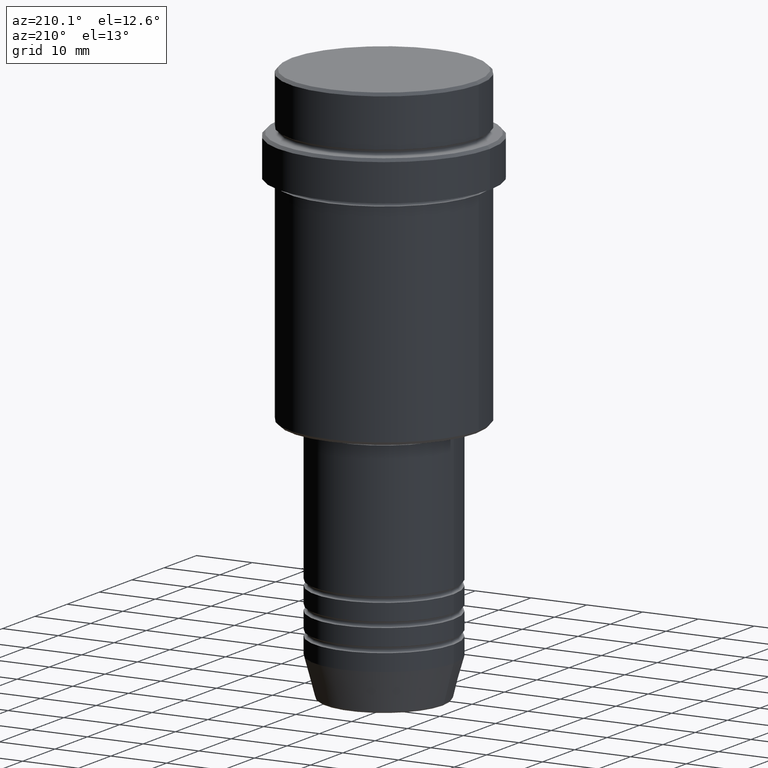
[diagram: clean part render]
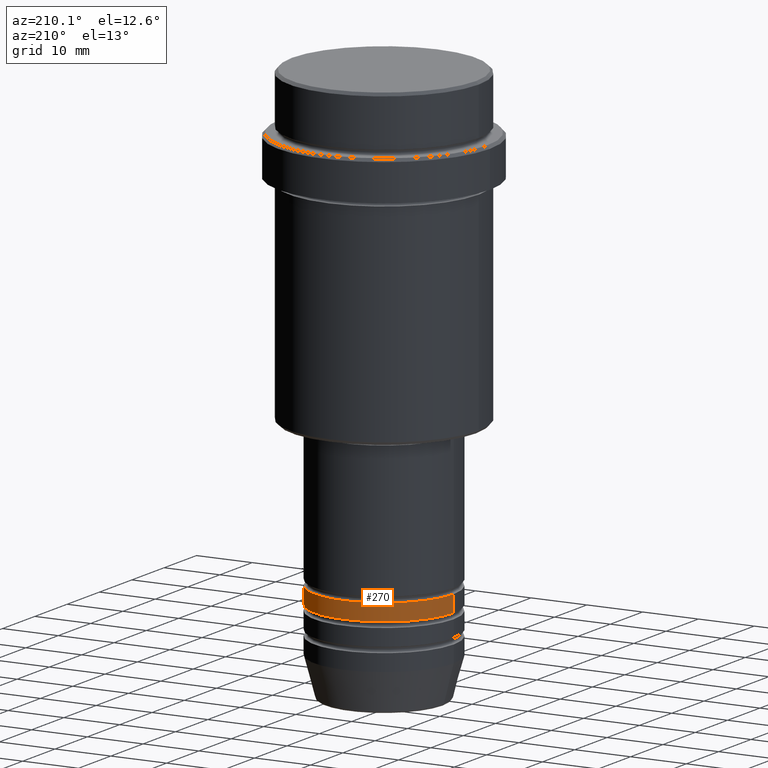
[diagram: same view with one face highlighted and labeled with its STEP entity id]
A machine part, auxiliary view. The second image highlights one B-rep face of the part: STEP entity #270.
In plain terms, the highlighted cylindrical surface (partial cylindrical patch) has radius 12.5 mm, axis along (-0, -0, 1).
Its self-contained STEP definition (entity closure, byte-faithful):
#44 = DIRECTION ( 'NONE',  ( -0.000000000000000000, -0.000000000000000000, 1.000000000000000000 ) ) ;
#183 = LINE ( 'NONE', #1263, #881 ) ;
#241 = AXIS2_PLACEMENT_3D ( 'NONE', #1177, #639, #1050 ) ;
#270 = ADVANCED_FACE ( 'NONE', ( #976 ), #535, .T. ) ;
#326 = DIRECTION ( 'NONE',  ( 1.000000000000000000, 0.000000000000000000, 0.000000000000000000 ) ) ;
#451 = EDGE_CURVE ( 'NONE', #452, #606, #183, .T. ) ;
#452 = VERTEX_POINT ( 'NONE', #938 ) ;
#469 = EDGE_CURVE ( 'NONE', #916, #452, #1363, .T. ) ;
#529 = CARTESIAN_POINT ( 'NONE',  ( 0.000000000000000000, 0.000000000000000000, 0.000000000000000000 ) ) ;
#535 = CYLINDRICAL_SURFACE ( 'NONE', #1202, 12.50000000000000000 ) ;
#570 = CARTESIAN_POINT ( 'NONE',  ( 12.50000000000000000, 0.000000000000000000, -81.99999999999987210 ) ) ;
#606 = VERTEX_POINT ( 'NONE', #884 ) ;
#639 = DIRECTION ( 'NONE',  ( -0.000000000000000000, -0.000000000000000000, 1.000000000000000000 ) ) ;
#658 = ORIENTED_EDGE ( 'NONE', *, *, #1015, .F. ) ;
#721 = DIRECTION ( 'NONE',  ( -0.000000000000000000, -0.000000000000000000, 1.000000000000000000 ) ) ;
#724 = CARTESIAN_POINT ( 'NONE',  ( 0.000000000000000000, 0.000000000000000000, -81.99999999999987210 ) ) ;
#727 = LINE ( 'NONE', #1048, #1000 ) ;
#772 = AXIS2_PLACEMENT_3D ( 'NONE', #724, #945, #831 ) ;
#797 = ORIENTED_EDGE ( 'NONE', *, *, #1377, .F. ) ;
#831 = DIRECTION ( 'NONE',  ( 1.000000000000000000, 0.000000000000000000, 0.000000000000000000 ) ) ;
#871 = VERTEX_POINT ( 'NONE', #570 ) ;
#881 = VECTOR ( 'NONE', #721, 1000.000000000000000 ) ;
#884 = CARTESIAN_POINT ( 'NONE',  ( -12.50000000000000000, 1.530808498934191521E-15, -81.99999999999987210 ) ) ;
#916 = VERTEX_POINT ( 'NONE', #1009 ) ;
#938 = CARTESIAN_POINT ( 'NONE',  ( -12.50000000000000000, 1.530808498934191521E-15, -84.99999999999988631 ) ) ;
#945 = DIRECTION ( 'NONE',  ( -0.000000000000000000, -0.000000000000000000, 1.000000000000000000 ) ) ;
#958 = ORIENTED_EDGE ( 'NONE', *, *, #451, .T. ) ;
#976 = FACE_OUTER_BOUND ( 'NONE', #1020, .T. ) ;
#1000 = VECTOR ( 'NONE', #44, 1000.000000000000000 ) ;
#1009 = CARTESIAN_POINT ( 'NONE',  ( 12.50000000000000000, 0.000000000000000000, -84.99999999999988631 ) ) ;
#1015 = EDGE_CURVE ( 'NONE', #916, #871, #727, .T. ) ;
#1020 = EDGE_LOOP ( 'NONE', ( #1271, #958, #797, #658 ) ) ;
#1048 = CARTESIAN_POINT ( 'NONE',  ( 12.50000000000000000, 0.000000000000000000, 0.000000000000000000 ) ) ;
#1050 = DIRECTION ( 'NONE',  ( 1.000000000000000000, 0.000000000000000000, 0.000000000000000000 ) ) ;
#1177 = CARTESIAN_POINT ( 'NONE',  ( 0.000000000000000000, 0.000000000000000000, -84.99999999999988631 ) ) ;
#1202 = AXIS2_PLACEMENT_3D ( 'NONE', #529, #1413, #326 ) ;
#1263 = CARTESIAN_POINT ( 'NONE',  ( -12.50000000000000000, 1.530808498934191521E-15, 0.000000000000000000 ) ) ;
#1271 = ORIENTED_EDGE ( 'NONE', *, *, #469, .T. ) ;
#1363 = CIRCLE ( 'NONE', #241, 12.50000000000000000 ) ;
#1377 = EDGE_CURVE ( 'NONE', #871, #606, #1391, .T. ) ;
#1391 = CIRCLE ( 'NONE', #772, 12.50000000000000000 ) ;
#1413 = DIRECTION ( 'NONE',  ( -0.000000000000000000, -0.000000000000000000, 1.000000000000000000 ) ) ;